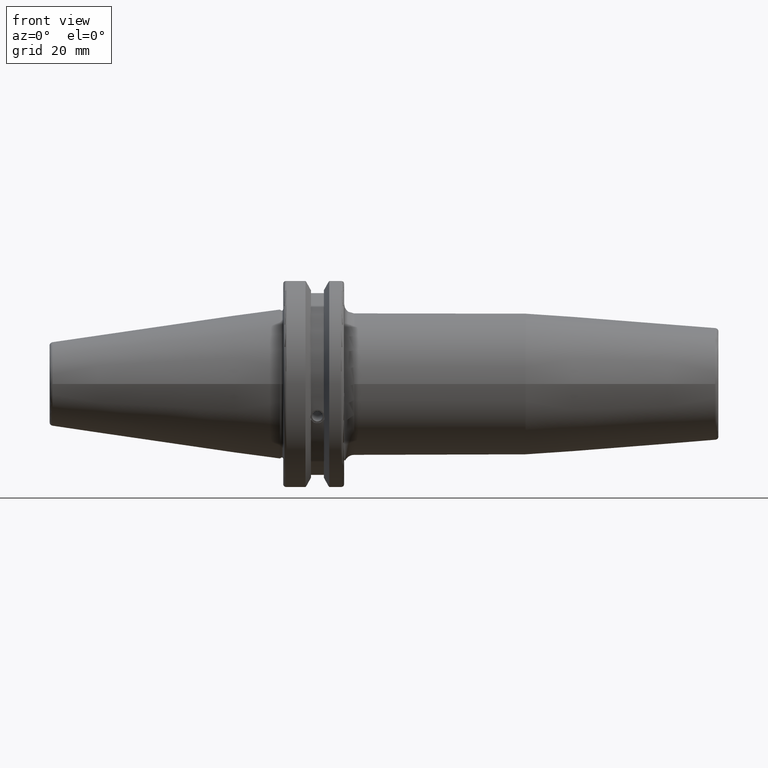
[diagram: clean part render]
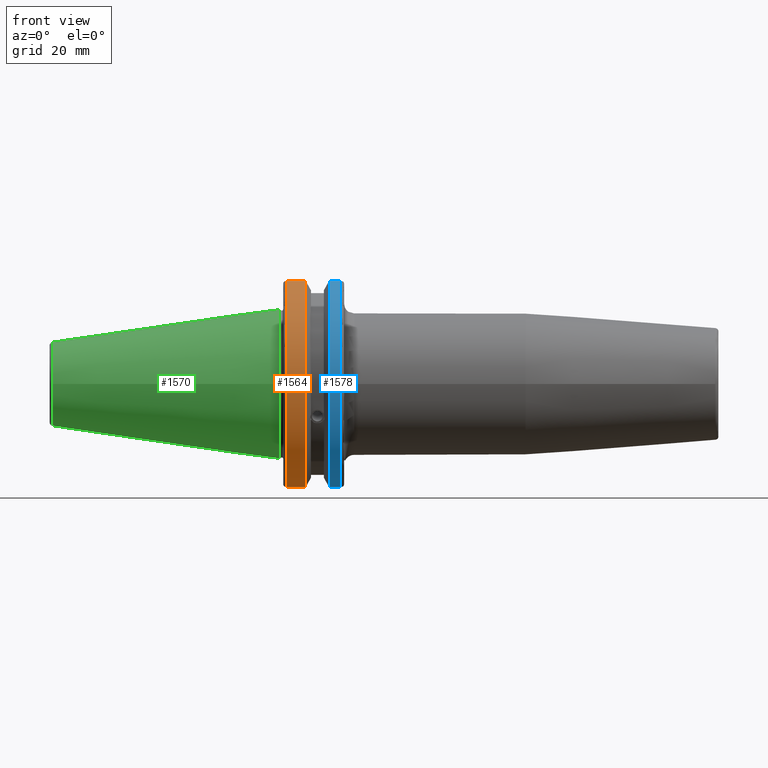
[diagram: same view with three faces highlighted in distinct colors, each labeled with its STEP entity id]
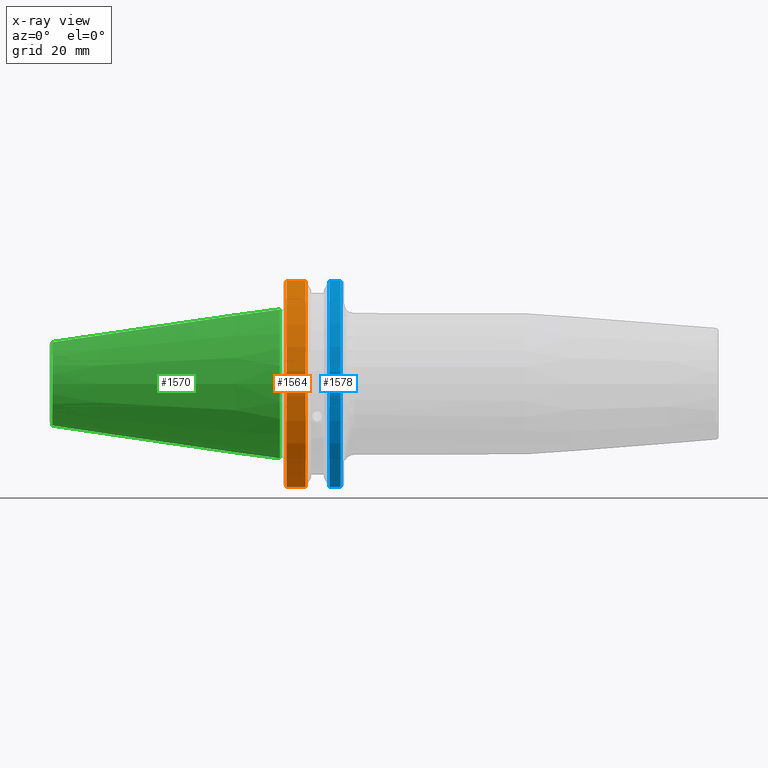
[diagram: x-ray of the same camera — body ghosted, the three highlighted faces saturated]
A machine part, front view with three faces highlighted in distinct colors.
The next image is the same camera in x-ray (body ghosted, the three faces saturated) — at least one of them is partly hidden behind the body in this view.
Their STEP definitions:

[orange] entity #1564 — the highlighted cylindrical surface (partial cylindrical patch) has radius 31.75 mm, axis along (1, 0, 0).
#170=CYLINDRICAL_SURFACE('',#1749,31.75);
#231=FACE_OUTER_BOUND('',#333,.T.);
#333=EDGE_LOOP('',(#1338,#1339,#1340,#1341));
#443=LINE('',#2975,#535);
#444=LINE('',#2981,#536);
#535=VECTOR('',#2131,10.);
#536=VECTOR('',#2134,10.);
#608=CIRCLE('',#1747,31.75);
#609=CIRCLE('',#1750,31.75);
#766=VERTEX_POINT('',#2954);
#767=VERTEX_POINT('',#2963);
#768=VERTEX_POINT('',#2974);
#769=VERTEX_POINT('',#2980);
#974=EDGE_CURVE('',#766,#767,#608,.T.);
#976=EDGE_CURVE('',#767,#768,#443,.T.);
#978=EDGE_CURVE('',#769,#766,#444,.T.);
#979=EDGE_CURVE('',#768,#769,#609,.T.);
#1338=ORIENTED_EDGE('',*,*,#974,.F.);
#1339=ORIENTED_EDGE('',*,*,#978,.F.);
#1340=ORIENTED_EDGE('',*,*,#979,.F.);
#1341=ORIENTED_EDGE('',*,*,#976,.F.);
#1564=ADVANCED_FACE('',(#231),#170,.T.);
#1747=AXIS2_PLACEMENT_3D('',#2964,#2127,#2128);
#1749=AXIS2_PLACEMENT_3D('',#2979,#2132,#2133);
#1750=AXIS2_PLACEMENT_3D('',#2982,#2135,#2136);
#2127=DIRECTION('center_axis',(-1.,0.,0.));
#2128=DIRECTION('ref_axis',(0.,-1.,1.60812264967664E-16));
#2131=DIRECTION('',(1.,0.,0.));
#2132=DIRECTION('center_axis',(1.,0.,0.));
#2133=DIRECTION('ref_axis',(0.,-1.,1.22464679914735E-16));
#2134=DIRECTION('',(-1.,0.,0.));
#2135=DIRECTION('center_axis',(1.,0.,0.));
#2136=DIRECTION('ref_axis',(0.,0.,-1.));
#2954=CARTESIAN_POINT('',(2.,-8.67204822802685,-30.5427254764662));
#2963=CARTESIAN_POINT('',(2.,-8.67204822802685,30.5427254764662));
#2964=CARTESIAN_POINT('Origin',(2.,0.,0.));
#2974=CARTESIAN_POINT('',(7.60793323092436,-8.67204822802685,30.5427254764662));
#2975=CARTESIAN_POINT('',(4.30396661546218,-8.67204822802685,30.5427254764662));
#2979=CARTESIAN_POINT('Origin',(4.30396661546218,0.,0.));
#2980=CARTESIAN_POINT('',(7.60793323092436,-8.67204822802685,-30.5427254764662));
#2981=CARTESIAN_POINT('',(4.30396661546218,-8.67204822802685,-30.5427254764662));
#2982=CARTESIAN_POINT('Origin',(7.60793323092436,0.,0.));

[blue] entity #1578 — the highlighted cylindrical surface (partial cylindrical patch) has radius 31.75 mm, axis along (1, 0, 0).
#171=CYLINDRICAL_SURFACE('',#1771,31.75);
#245=FACE_OUTER_BOUND('',#348,.T.);
#348=EDGE_LOOP('',(#1407,#1408,#1409,#1410));
#454=LINE('',#3053,#546);
#455=LINE('',#3055,#547);
#546=VECTOR('',#2186,10.);
#547=VECTOR('',#2189,10.);
#582=CIRCLE('',#1686,31.75);
#607=CIRCLE('',#1743,31.75);
#683=VERTEX_POINT('',#2577);
#684=VERTEX_POINT('',#2581);
#757=VERTEX_POINT('',#2898);
#758=VERTEX_POINT('',#2907);
#861=EDGE_CURVE('',#684,#683,#582,.T.);
#958=EDGE_CURVE('',#757,#758,#607,.T.);
#1002=EDGE_CURVE('',#758,#683,#454,.T.);
#1003=EDGE_CURVE('',#684,#757,#455,.T.);
#1407=ORIENTED_EDGE('',*,*,#958,.F.);
#1408=ORIENTED_EDGE('',*,*,#1003,.F.);
#1409=ORIENTED_EDGE('',*,*,#861,.T.);
#1410=ORIENTED_EDGE('',*,*,#1002,.F.);
#1578=ADVANCED_FACE('',(#245),#171,.T.);
#1686=AXIS2_PLACEMENT_3D('',#2582,#1954,#1955);
#1743=AXIS2_PLACEMENT_3D('',#2908,#2110,#2111);
#1771=AXIS2_PLACEMENT_3D('',#3054,#2187,#2188);
#1954=DIRECTION('center_axis',(1.,0.,0.));
#1955=DIRECTION('ref_axis',(0.,0.,-1.));
#2110=DIRECTION('center_axis',(1.,0.,0.));
#2111=DIRECTION('ref_axis',(0.,-1.,1.60812264967664E-16));
#2186=DIRECTION('',(-1.,0.,0.));
#2187=DIRECTION('center_axis',(1.,0.,0.));
#2188=DIRECTION('ref_axis',(0.,-1.,1.22464679914735E-16));
#2189=DIRECTION('',(1.,0.,0.));
#2577=CARTESIAN_POINT('',(14.6602667690756,-8.67204822802686,-30.5427254764662));
#2581=CARTESIAN_POINT('',(14.6602667690756,-8.67204822802685,30.5427254764662));
#2582=CARTESIAN_POINT('Origin',(14.6602667690756,0.,0.));
#2898=CARTESIAN_POINT('',(18.05,-8.67204822802685,30.5427254764662));
#2907=CARTESIAN_POINT('',(18.05,-8.67204822802686,-30.5427254764662));
#2908=CARTESIAN_POINT('Origin',(18.05,0.,0.));
#3053=CARTESIAN_POINT('',(16.8551333845378,-8.67204822802686,-30.5427254764662));
#3054=CARTESIAN_POINT('Origin',(16.8551333845378,0.,0.));
#3055=CARTESIAN_POINT('',(16.8551333845378,-8.67204822802685,30.5427254764662));

[green] entity #1570 — the highlighted conical surface has half-angle 8.297 deg.
#237=FACE_OUTER_BOUND('',#340,.T.);
#340=EDGE_LOOP('',(#1363,#1364,#1365,#1366,#1367));
#446=LINE('',#3034,#538);
#538=VECTOR('',#2164,17.2484375);
#611=CIRCLE('',#1756,12.3966635780937);
#612=CIRCLE('',#1757,12.3966635780937);
#616=CIRCLE('',#1763,22.225);
#774=VERTEX_POINT('',#3021);
#775=VERTEX_POINT('',#3022);
#778=VERTEX_POINT('',#3032);
#987=EDGE_CURVE('',#774,#775,#611,.T.);
#988=EDGE_CURVE('',#775,#774,#612,.T.);
#992=EDGE_CURVE('',#778,#778,#616,.T.);
#993=EDGE_CURVE('',#778,#775,#446,.T.);
#1363=ORIENTED_EDGE('',*,*,#992,.F.);
#1364=ORIENTED_EDGE('',*,*,#993,.T.);
#1365=ORIENTED_EDGE('',*,*,#987,.F.);
#1366=ORIENTED_EDGE('',*,*,#988,.F.);
#1367=ORIENTED_EDGE('',*,*,#993,.F.);
#1505=CONICAL_SURFACE('',#1762,17.2484375,0.144812498238939);
#1570=ADVANCED_FACE('',(#237),#1505,.T.);
#1756=AXIS2_PLACEMENT_3D('',#3023,#2148,#2149);
#1757=AXIS2_PLACEMENT_3D('',#3024,#2150,#2151);
#1762=AXIS2_PLACEMENT_3D('',#3031,#2160,#2161);
#1763=AXIS2_PLACEMENT_3D('',#3033,#2162,#2163);
#2148=DIRECTION('center_axis',(-1.,0.,0.));
#2149=DIRECTION('ref_axis',(0.,-1.,3.06161699786838E-17));
#2150=DIRECTION('center_axis',(-1.,0.,0.));
#2151=DIRECTION('ref_axis',(0.,-1.,3.06161699786838E-17));
#2160=DIRECTION('center_axis',(1.,0.,0.));
#2161=DIRECTION('ref_axis',(0.,1.,0.));
#2162=DIRECTION('center_axis',(1.,0.,0.));
#2163=DIRECTION('ref_axis',(0.,0.,-1.));
#2164=DIRECTION('',(-0.989532981063282,0.144306893071729,1.76724974695192E-17));
#3021=CARTESIAN_POINT('',(-67.3943068930717,-1.5181534371019E-15,12.3966635780937));
#3022=CARTESIAN_POINT('',(-67.3943068930718,-12.3966635780937,-1.5181534371019E-15));
#3023=CARTESIAN_POINT('Origin',(-67.3943068930717,0.,-1.89769179637738E-15));
#3024=CARTESIAN_POINT('Origin',(-67.3943068930717,0.,-1.89769179637738E-15));
#3031=CARTESIAN_POINT('Origin',(-34.125,0.,0.));
#3032=CARTESIAN_POINT('',(0.,-22.225,-2.72177751110499E-15));
#3033=CARTESIAN_POINT('Origin',(0.,0.,0.));
#3034=CARTESIAN_POINT('',(-34.125,-17.2484375,-2.11232437746682E-15));